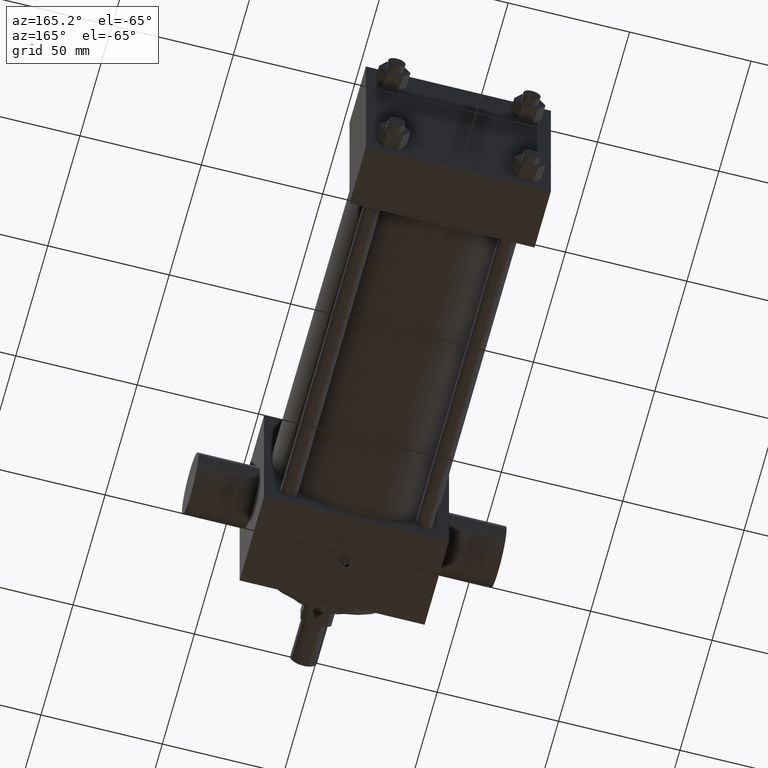
[diagram: clean part render]
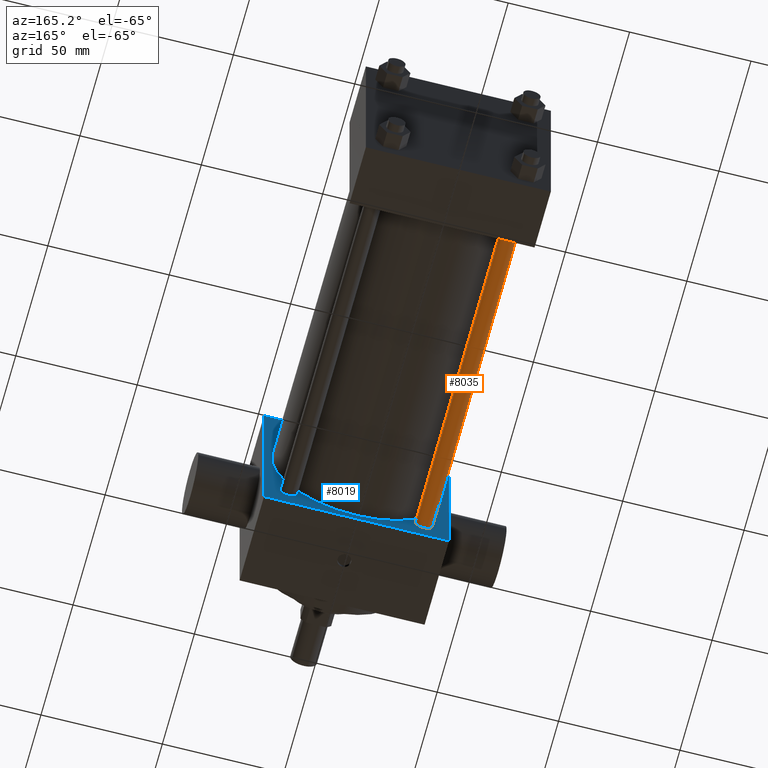
[diagram: same view with the hole feature highlighted: cylindrical wall and planar end face, labeled with their STEP entity ids]
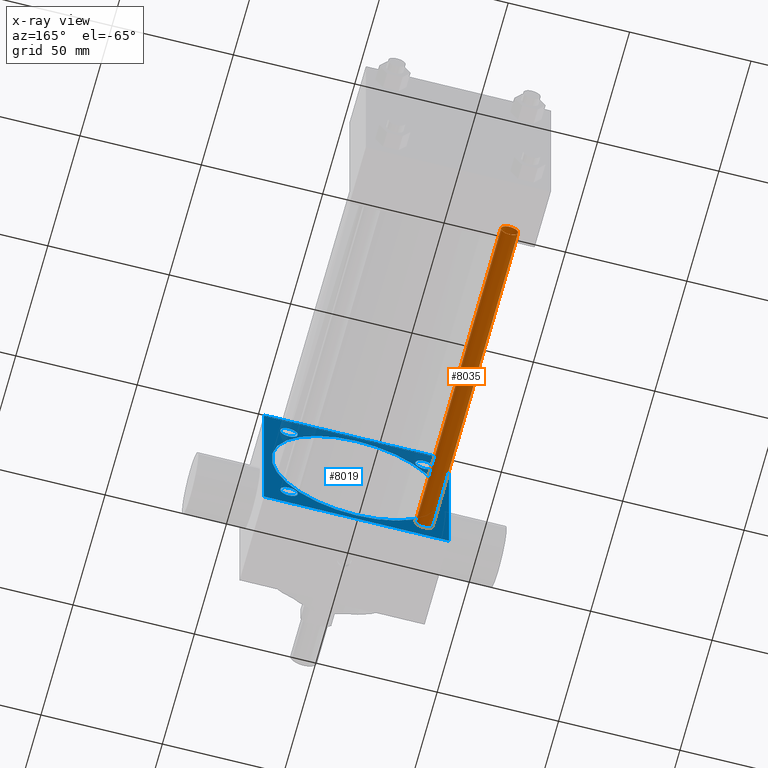
[diagram: x-ray of the same camera — body ghosted, the hole faces saturated]
A machine part, auxiliary view. The highlighted faces form one hole feature of diameter 7.1374 mm: the cylindrical wall (entity #8035, orange) and its adjacent planar end face (entity #8019, blue) — they share a circular edge in the B-rep.
The next image is the same camera in x-ray (body ghosted, the hole faces saturated) — the bore reads through the body.
Wall:
#529=EDGE_CURVE('',#535,#535,#530,.T.);
#530=CIRCLE('',#531,3.568700000E+000);
#531=AXIS2_PLACEMENT_3D('',#532,#533,#534);
#532=CARTESIAN_POINT('',(-2.781300000E+001,6.350000000E+001,-2.781300000E+001));
#533=DIRECTION('',(0.0E+000,1.0E+000,0.0E+000));
#534=DIRECTION('',(1.0E+000,0.0E+000,0.0E+000));
#535=VERTEX_POINT('',#536);
#536=CARTESIAN_POINT('',(-2.424430000E+001,6.350000000E+001,-2.781300000E+001));
#1390=FACE_OUTER_BOUND('',#1392,.T.);
#1391=FACE_BOUND('',#1393,.T.);
#1392=EDGE_LOOP('',(#1394));
#1393=EDGE_LOOP('',(#1395));
#1394=ORIENTED_EDGE('',*,*,#1439,.F.);
#1395=ORIENTED_EDGE('',*,*,#529,.T.);
#1396=CYLINDRICAL_SURFACE('',#1397,3.568700000E+000);
#1397=AXIS2_PLACEMENT_3D('',#1398,#1399,#1400);
#1398=CARTESIAN_POINT('',(-2.781300000E+001,1.968500000E+002,-2.781300000E+001));
#1399=DIRECTION('',(0.0E+000,-1.0E+000,0.0E+000));
#1400=DIRECTION('',(0.0E+000,0.0E+000,-1.0E+000));
#1439=EDGE_CURVE('',#1445,#1445,#1440,.T.);
#1440=CIRCLE('',#1441,3.568700000E+000);
#1441=AXIS2_PLACEMENT_3D('',#1442,#1443,#1444);
#1442=CARTESIAN_POINT('',(-2.781300000E+001,1.968500000E+002,-2.781300000E+001));
#1443=DIRECTION('',(0.0E+000,1.0E+000,0.0E+000));
#1444=DIRECTION('',(1.0E+000,0.0E+000,0.0E+000));
#1445=VERTEX_POINT('',#1446);
#1446=CARTESIAN_POINT('',(-2.424430000E+001,1.968500000E+002,-2.781300000E+001));
#8035=ADVANCED_FACE('',(#1390,#1391),#1396,.T.);
End face:
#498=FACE_OUTER_BOUND('',#504,.T.);
#499=FACE_BOUND('',#505,.T.);
#500=FACE_BOUND('',#506,.T.);
#501=FACE_BOUND('',#507,.T.);
#502=FACE_BOUND('',#508,.T.);
#503=FACE_BOUND('',#509,.T.);
#504=EDGE_LOOP('',(#510));
#505=EDGE_LOOP('',(#519));
#506=EDGE_LOOP('',(#528));
#507=EDGE_LOOP('',(#537,#538,#539,#540));
#508=EDGE_LOOP('',(#569));
#509=EDGE_LOOP('',(#578));
#510=ORIENTED_EDGE('',*,*,#511,.T.);
#511=EDGE_CURVE('',#517,#517,#512,.T.);
#512=CIRCLE('',#513,3.568700000E+000);
#513=AXIS2_PLACEMENT_3D('',#514,#515,#516);
#514=CARTESIAN_POINT('',(2.781300000E+001,6.350000000E+001,2.781300000E+001));
#515=DIRECTION('',(0.0E+000,-1.0E+000,0.0E+000));
#516=DIRECTION('',(0.0E+000,0.0E+000,-1.0E+000));
#517=VERTEX_POINT('',#518);
#518=CARTESIAN_POINT('',(2.781300000E+001,6.350000000E+001,2.424430000E+001));
#519=ORIENTED_EDGE('',*,*,#520,.T.);
#520=EDGE_CURVE('',#526,#526,#521,.T.);
#521=CIRCLE('',#522,3.568700000E+000);
#522=AXIS2_PLACEMENT_3D('',#523,#524,#525);
#523=CARTESIAN_POINT('',(2.781300000E+001,6.350000000E+001,-2.781300000E+001));
#524=DIRECTION('',(0.0E+000,-1.0E+000,0.0E+000));
#525=DIRECTION('',(0.0E+000,0.0E+000,-1.0E+000));
#526=VERTEX_POINT('',#527);
#527=CARTESIAN_POINT('',(2.781300000E+001,6.350000000E+001,-3.138170000E+001));
#528=ORIENTED_EDGE('',*,*,#529,.F.);
#529=EDGE_CURVE('',#535,#535,#530,.T.);
#530=CIRCLE('',#531,3.568700000E+000);
#531=AXIS2_PLACEMENT_3D('',#532,#533,#534);
#532=CARTESIAN_POINT('',(-2.781300000E+001,6.350000000E+001,-2.781300000E+001));
#533=DIRECTION('',(0.0E+000,1.0E+000,0.0E+000));
#534=DIRECTION('',(1.0E+000,0.0E+000,0.0E+000));
#535=VERTEX_POINT('',#536);
#536=CARTESIAN_POINT('',(-2.424430000E+001,6.350000000E+001,-2.781300000E+001));
#537=ORIENTED_EDGE('',*,*,#541,.F.);
#538=ORIENTED_EDGE('',*,*,#550,.F.);
#539=ORIENTED_EDGE('',*,*,#557,.F.);
#540=ORIENTED_EDGE('',*,*,#564,.F.);
#541=EDGE_CURVE('',#546,#547,#542,.T.);
#542=LINE('',#543,#544);
#543=CARTESIAN_POINT('',(-3.810000000E+001,6.350000000E+001,-3.810000000E+001));
#544=VECTOR('',#545,1.0E+000);
#545=DIRECTION('',(1.0E+000,0.0E+000,0.0E+000));
#546=VERTEX_POINT('',#548);
#547=VERTEX_POINT('',#549);
#548=CARTESIAN_POINT('',(-3.810000000E+001,6.350000000E+001,-3.810000000E+001));
#549=CARTESIAN_POINT('',(3.810000000E+001,6.350000000E+001,-3.810000000E+001));
#550=EDGE_CURVE('',#555,#546,#551,.T.);
#551=LINE('',#552,#553);
#552=CARTESIAN_POINT('',(-3.810000000E+001,6.350000000E+001,3.810000000E+001));
#553=VECTOR('',#554,1.0E+000);
#554=DIRECTION('',(0.0E+000,0.0E+000,-1.0E+000));
#555=VERTEX_POINT('',#556);
#556=CARTESIAN_POINT('',(-3.810000000E+001,6.350000000E+001,3.810000000E+001));
#557=EDGE_CURVE('',#562,#555,#558,.T.);
#558=LINE('',#559,#560);
#559=CARTESIAN_POINT('',(3.810000000E+001,6.350000000E+001,3.810000000E+001));
#560=VECTOR('',#561,1.0E+000);
#561=DIRECTION('',(-1.0E+000,0.0E+000,0.0E+000));
#562=VERTEX_POINT('',#563);
#563=CARTESIAN_POINT('',(3.810000000E+001,6.350000000E+001,3.810000000E+001));
#564=EDGE_CURVE('',#547,#562,#565,.T.);
#565=LINE('',#566,#567);
#566=CARTESIAN_POINT('',(3.810000000E+001,6.350000000E+001,-3.810000000E+001));
#567=VECTOR('',#568,1.0E+000);
#568=DIRECTION('',(0.0E+000,0.0E+000,1.0E+000));
#569=ORIENTED_EDGE('',*,*,#570,.T.);
#570=EDGE_CURVE('',#576,#576,#571,.T.);
#571=CIRCLE('',#572,3.568700000E+000);
#572=AXIS2_PLACEMENT_3D('',#573,#574,#575);
#573=CARTESIAN_POINT('',(-2.781300000E+001,6.350000000E+001,2.781300000E+001));
#574=DIRECTION('',(0.0E+000,-1.0E+000,0.0E+000));
#575=DIRECTION('',(0.0E+000,0.0E+000,-1.0E+000));
#576=VERTEX_POINT('',#577);
#577=CARTESIAN_POINT('',(-2.781300000E+001,6.350000000E+001,2.424430000E+001));
#578=ORIENTED_EDGE('',*,*,#579,.T.);
#579=EDGE_CURVE('',#585,#585,#580,.T.);
#580=CIRCLE('',#581,3.492500000E+001);
#581=AXIS2_PLACEMENT_3D('',#582,#583,#584);
#582=CARTESIAN_POINT('',(0.000000000E+000,6.350000000E+001,0.000000000E+000));
#583=DIRECTION('',(0.0E+000,-1.0E+000,0.0E+000));
#584=DIRECTION('',(0.0E+000,0.0E+000,-1.0E+000));
#585=VERTEX_POINT('',#586);
#586=CARTESIAN_POINT('',(0.000000000E+000,6.350000000E+001,-3.492500000E+001));
#587=PLANE('',#588);
#588=AXIS2_PLACEMENT_3D('',#589,#590,#591);
#589=CARTESIAN_POINT('',(3.810000000E+001,6.350000000E+001,-3.810000000E+001));
#590=DIRECTION('',(0.0E+000,-1.0E+000,0.0E+000));
#591=DIRECTION('',(0.0E+000,0.0E+000,-1.0E+000));
#8019=ADVANCED_FACE('',(#498,#499,#500,#501,#502,#503),#587,.F.);